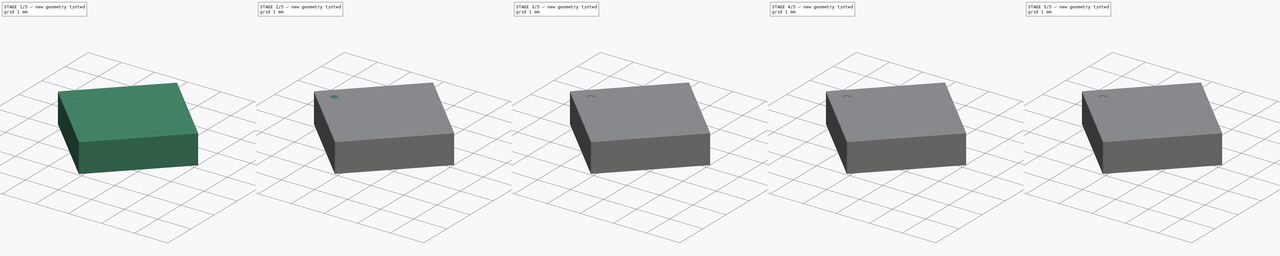
[diagram: build sequence overview — one tinted view per stage of 5, left to right]
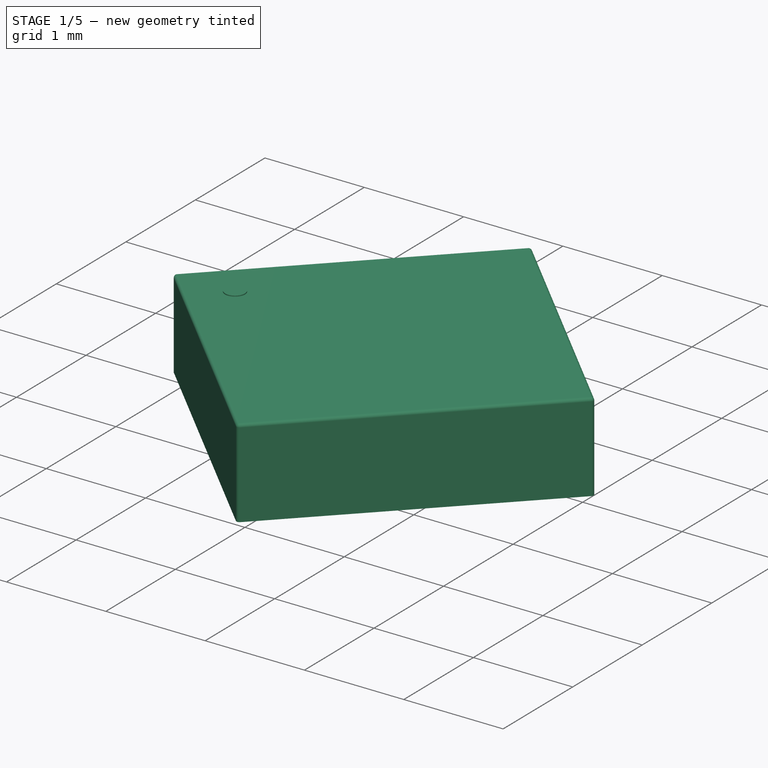
[diagram: stage 1 of 5 — iso view after this stage's code; geometry added in this stage tinted green]
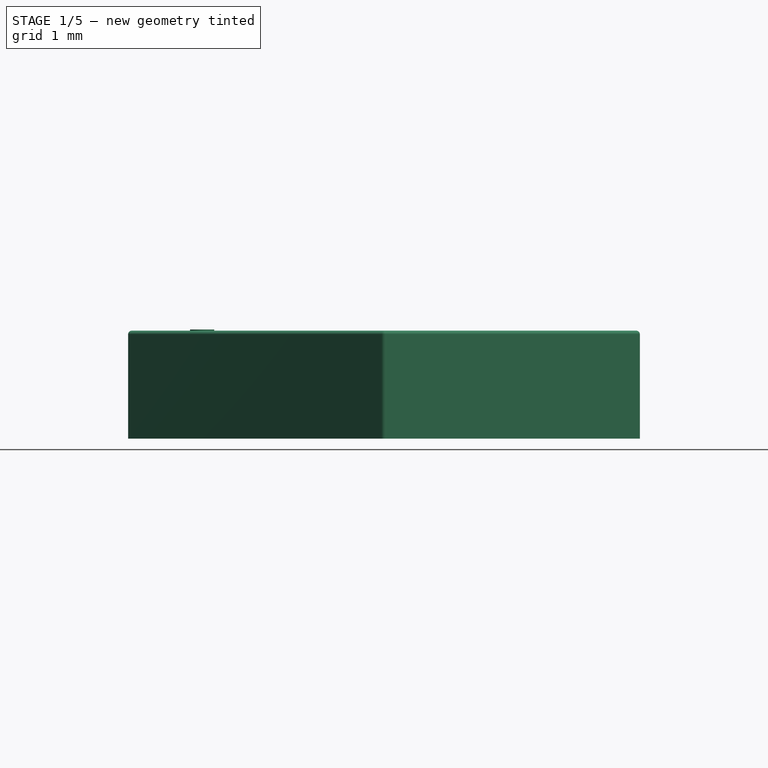
[diagram: stage 1 of 5 — front view after this stage's code; geometry added in this stage tinted green]
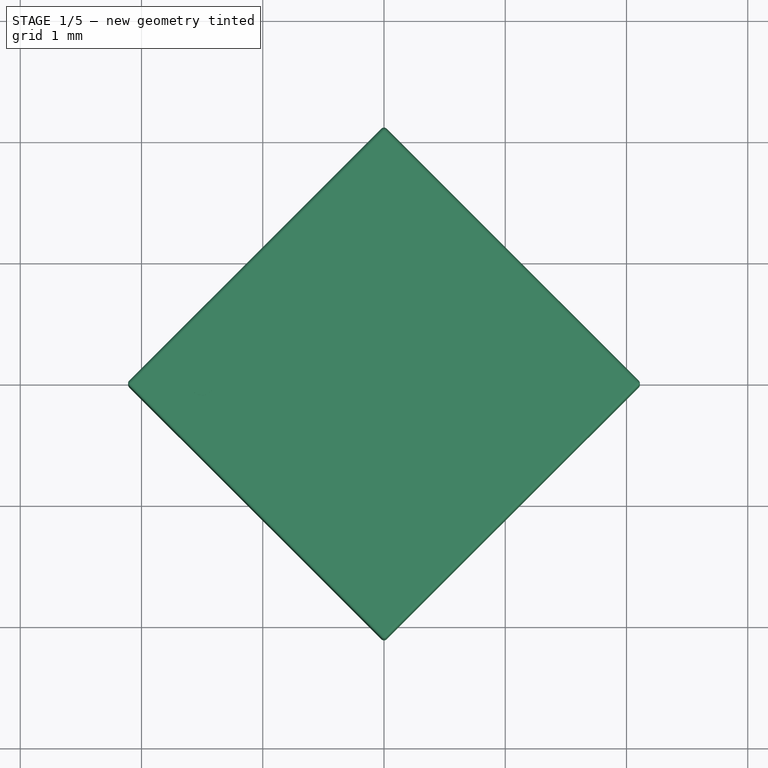
[diagram: stage 1 of 5 — top view after this stage's code; geometry added in this stage tinted green]
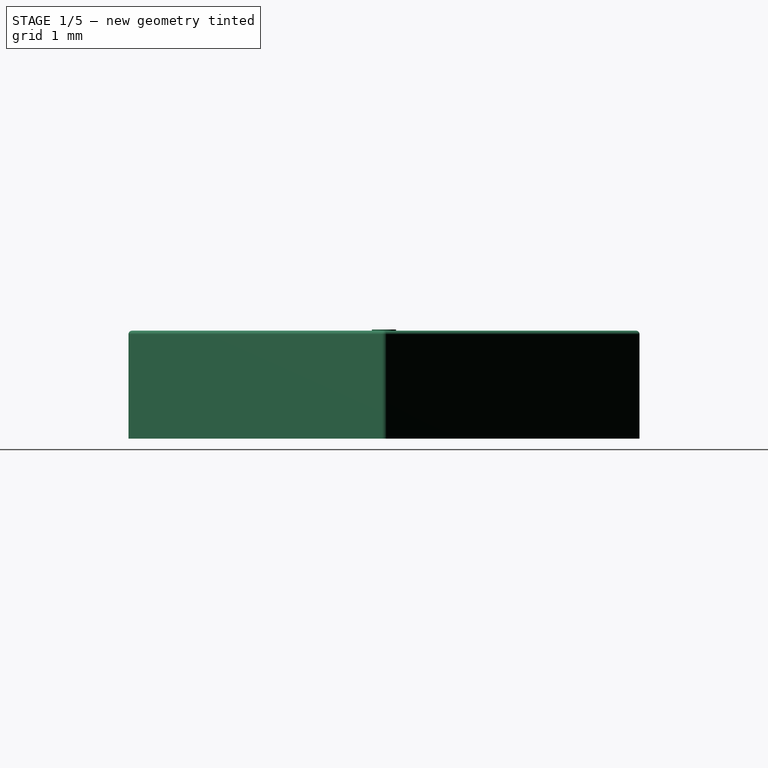
[diagram: stage 1 of 5 — right view after this stage's code; geometry added in this stage tinted green]
FCSTD DOCUMENT  (FreeCAD 0.17R11223 (Git))
Label: Mini-Circuits_FG873-4_3x3mm_04
License: All rights reserved
LicenseURL: http://en.wikipedia.org/wiki/All_rights_reserved
objects: Part::Box×8, Part::MultiFuse×4, Part::Cylinder×2, Sketcher::SketchObject×1, PartDesign::Pad×1, PartDesign::Body×1, Part::Fillet×1, Part::Cut×1
note: 20 computed .brp shape members not serialized (recipe doc carries the construction recipe); baked Part::Feature solids carry a one-line shape summary decoded from their .brp

FEATURE [Sketcher::SketchObject] Sketch
  MapMode = 5
  Support = -> [XY_Plane]
  sketch-geometry (4):
    g0: LineSegment StartX=-2.12264 StartY=0 StartZ=0 EndX=0 EndY=2.12 EndZ=0
    g1: LineSegment StartX=0 StartY=2.12 StartZ=0 EndX=2.12264 EndY=0 EndZ=0
    g2: LineSegment StartX=2.12264 StartY=0 StartZ=0 EndX=0 EndY=-2.12 EndZ=0
    g3: LineSegment StartX=0 StartY=-2.12 StartZ=0 EndX=-2.12264 EndY=0 EndZ=0
  constraints (12):
    c: PointOnObject(g0,g-1)
    c: PointOnObject(g0,g-2)
    c: Coincident(g1,g0)
    c: PointOnObject(g1,g-1)
    c: Coincident(g2,g1)
    c: Coincident(g3,g2)
    c: Coincident(g3,g0)
    c: Distance(g2) = 3
    c: Distance(g1) = 3
    c: Distance(g0) = 3
    c: Distance(g3) = 3
    c: DistanceY(g-1,g0) = 2.12
FEATURE [PartDesign::Pad] Pad
  Length = 0.89
  Length2 = 100
  Profile = -> Sketch
  Type = 0
FEATURE [Part::Fillet] Fillet
  Base = -> Pad
  Edges = 8 edges r=0.03: [Edge1,Edge2,Edge4,Edge5,Edge7,Edge8,Edge10,Edge12]
FEATURE [Part::Cylinder] Cylinder
  Angle = 360
  AttacherType = Attacher::AttachEngine3D
  Height = 0.2
  Placement = pos=(-1.5,0,0.7) rot=(0,0,1;0rad)
  Radius = 0.1
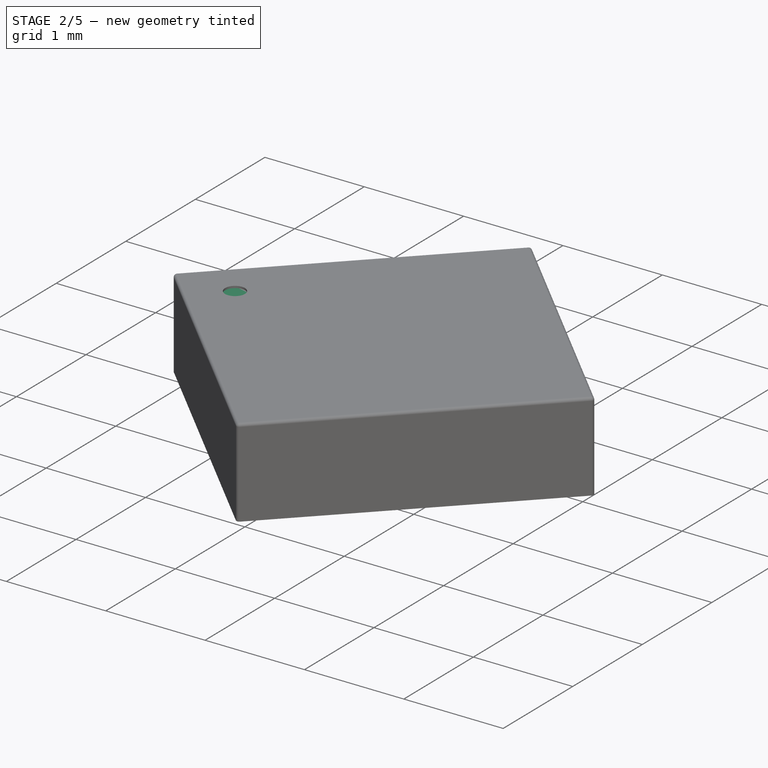
[diagram: stage 2 of 5 — iso view after this stage's code; geometry added in this stage tinted green]
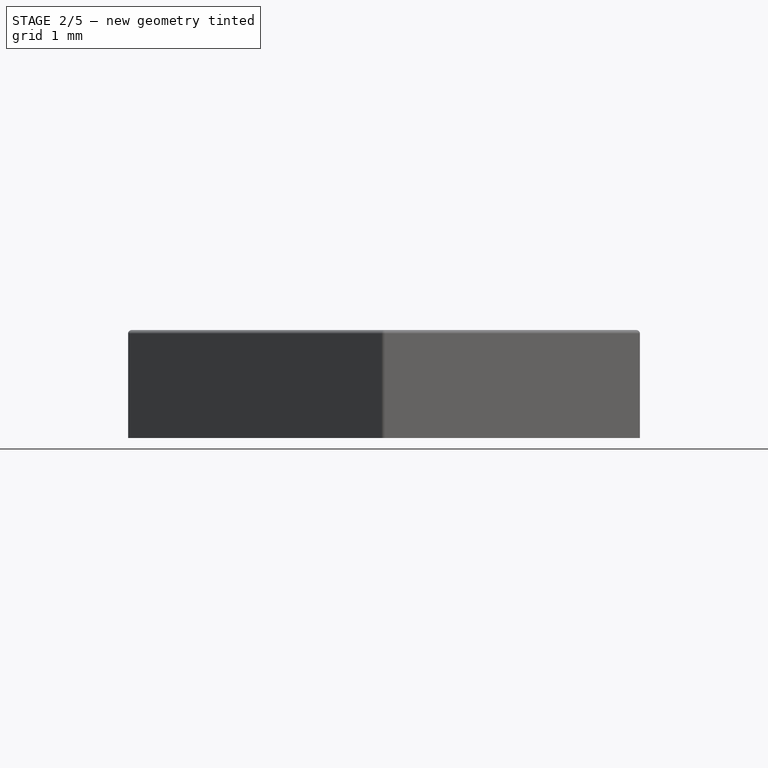
[diagram: stage 2 of 5 — front view after this stage's code; geometry added in this stage tinted green]
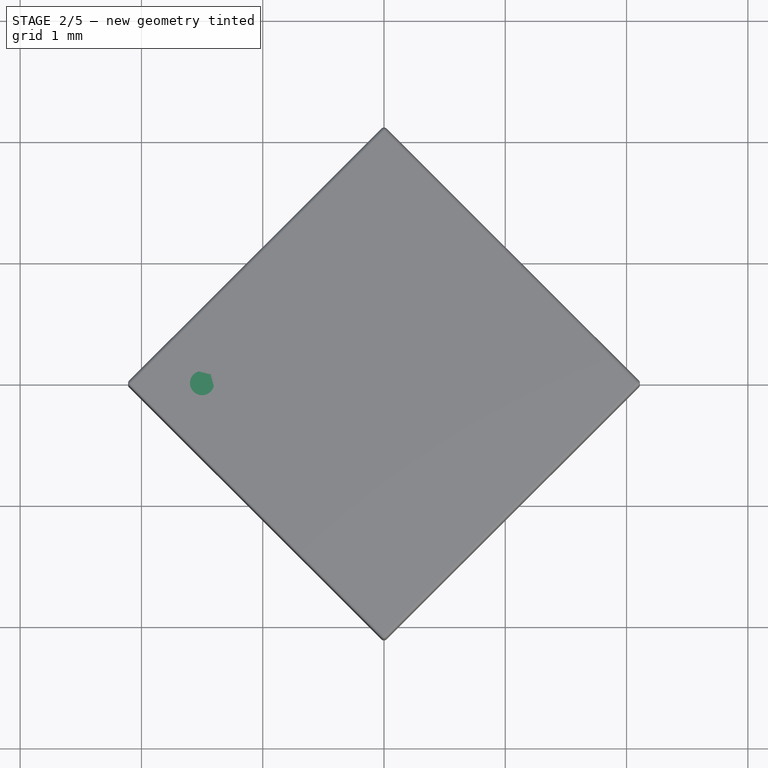
[diagram: stage 2 of 5 — top view after this stage's code; geometry added in this stage tinted green]
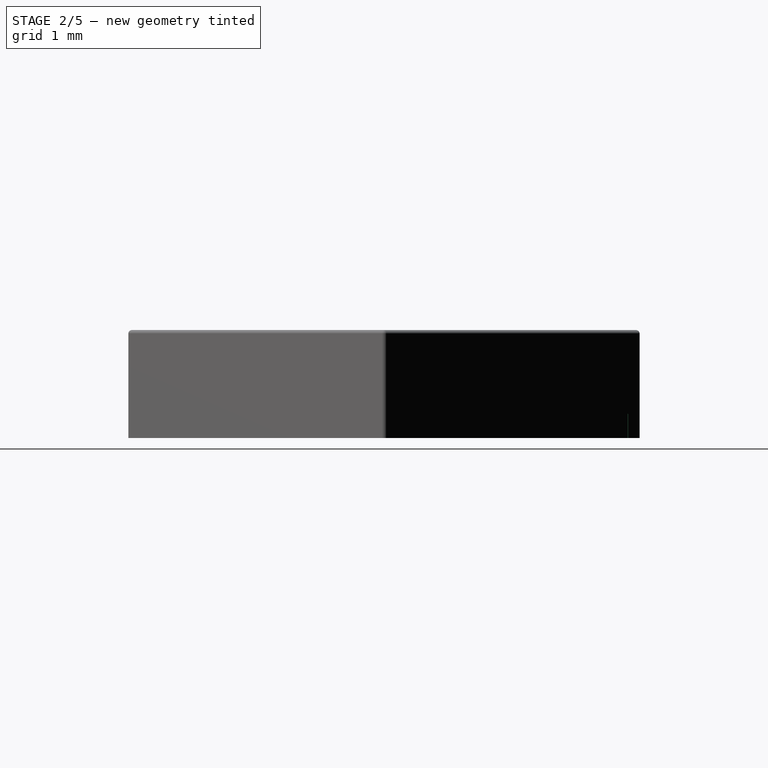
[diagram: stage 2 of 5 — right view after this stage's code; geometry added in this stage tinted green]
FEATURE [Part::Box] Box006  label="Kub006"
  AttacherType = Attacher::AttachEngine3D
  Height = 0.2
  Length = 0.05
  Placement = pos=(0,1.9,0) rot=(0,0,1;0.785398rad)
  Width = 0.16
FEATURE [Part::Box] Box007  label="Kub007"
  AttacherType = Attacher::AttachEngine3D
  Height = 0.2
  Length = 0.05
  Placement = pos=(0,1.97,0) rot=(0,0,-1;0.785398rad)
  Width = 0.11
FEATURE [Part::Cylinder] Cylinder001
  Angle = 360
  AttacherType = Attacher::AttachEngine3D
  Height = 0.2
  Placement = pos=(-1.5,0,0.67) rot=(0,0,1;0rad)
  Radius = 0.1
FEATURE [Part::Cut] Cut
  Base = -> Fillet
  Tool = -> Cylinder
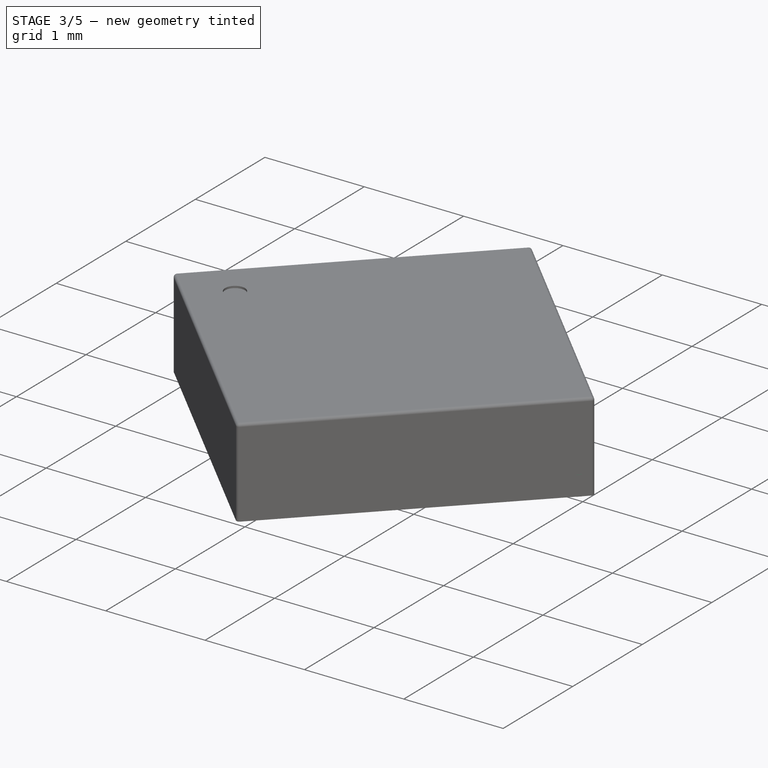
[diagram: stage 3 of 5 — iso view after this stage's code; geometry added in this stage tinted green]
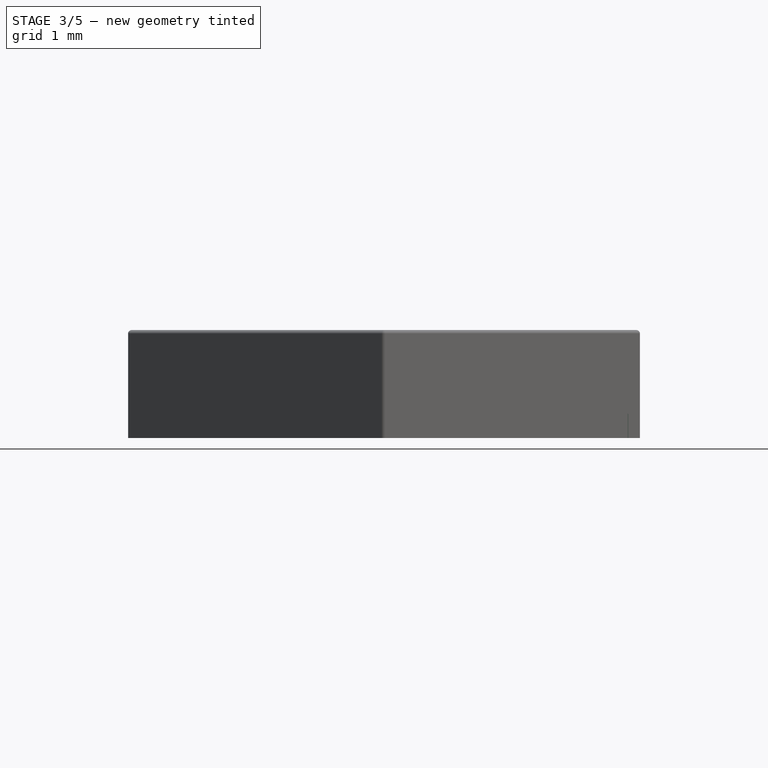
[diagram: stage 3 of 5 — front view after this stage's code; geometry added in this stage tinted green]
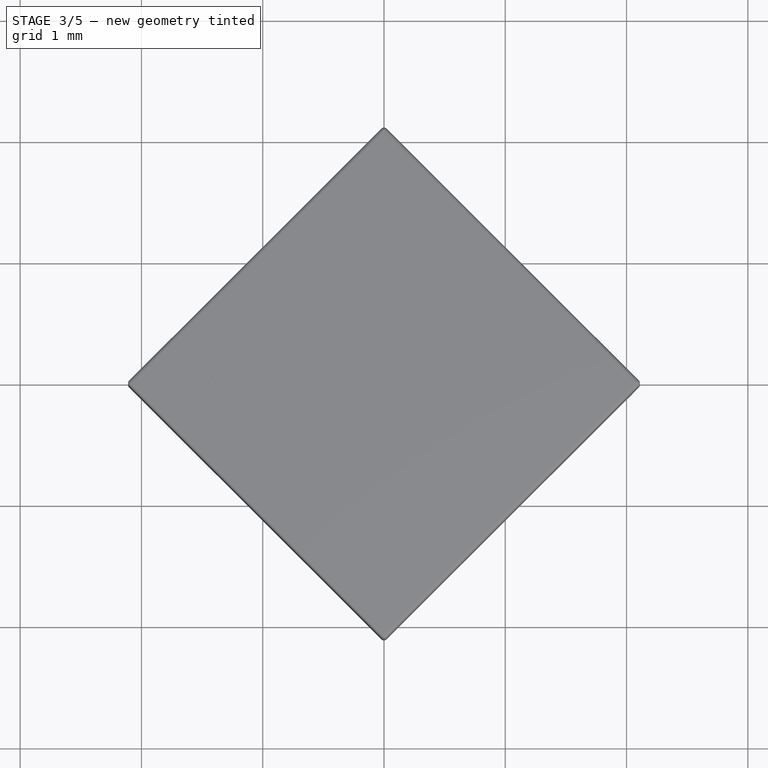
[diagram: stage 3 of 5 — top view after this stage's code; geometry added in this stage tinted green]
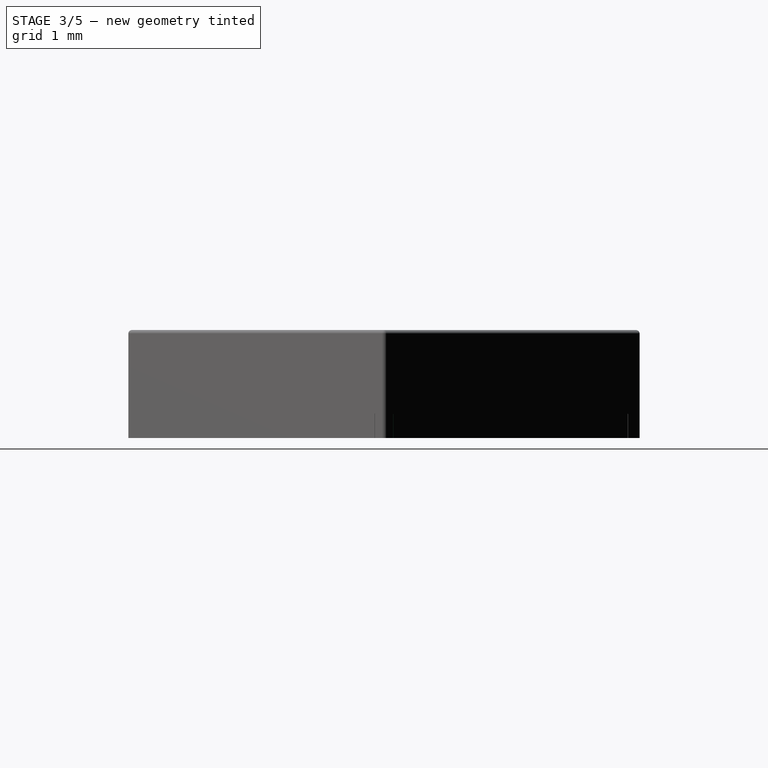
[diagram: stage 3 of 5 — right view after this stage's code; geometry added in this stage tinted green]
FEATURE [Part::Box] Box004  label="Kub004"
  AttacherType = Attacher::AttachEngine3D
  Height = 0.2
  Length = 0.05
  Placement = pos=(0,1.9,0) rot=(0,0,1;0.785398rad)
  Width = 0.16
FEATURE [Part::Box] Box005  label="Kub005"
  AttacherType = Attacher::AttachEngine3D
  Height = 0.2
  Length = 0.05
  Placement = pos=(0,1.97,0) rot=(0,0,-1;0.785398rad)
  Width = 0.11
FEATURE [Part::MultiFuse] Fusion003
  Placement = pos=(0,0,0) rot=(0,0,1;4.71239rad)
  Shapes = -> [Box006,Box007]
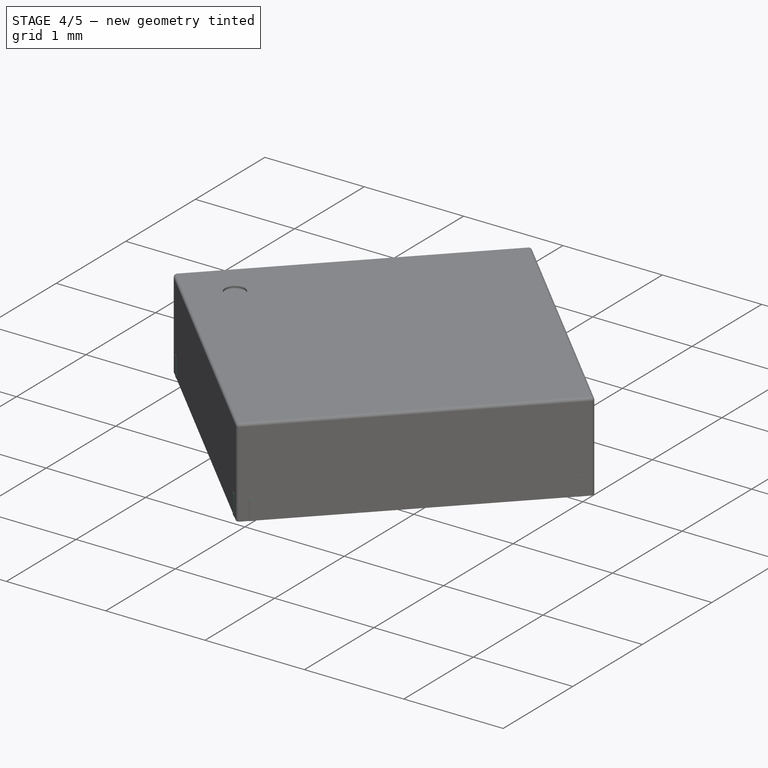
[diagram: stage 4 of 5 — iso view after this stage's code; geometry added in this stage tinted green]
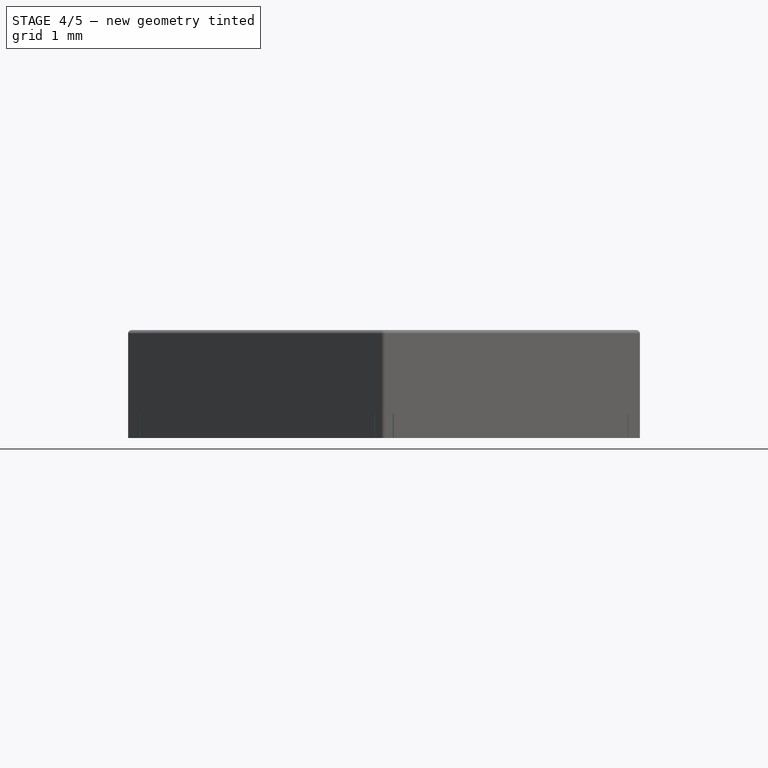
[diagram: stage 4 of 5 — front view after this stage's code; geometry added in this stage tinted green]
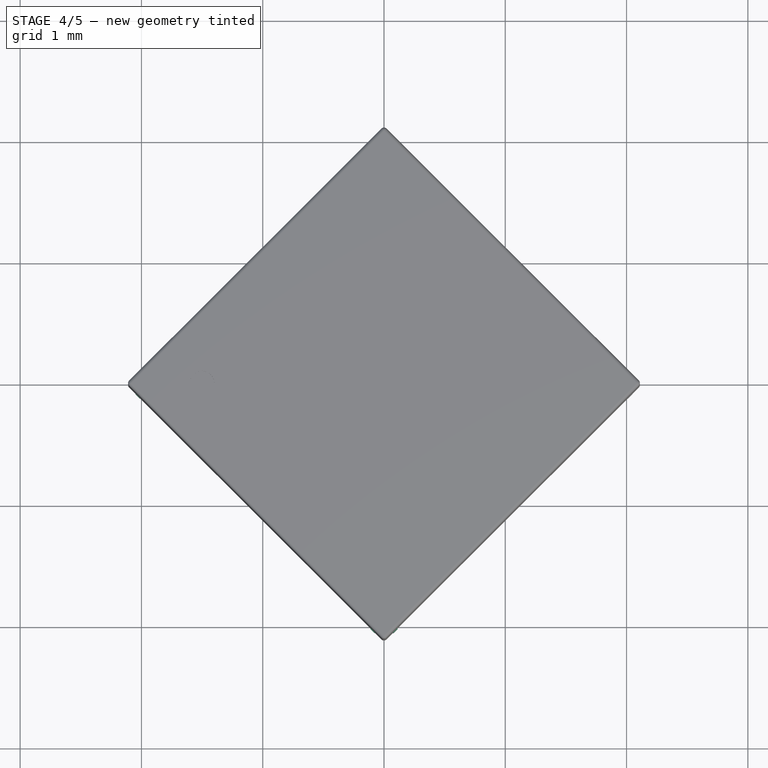
[diagram: stage 4 of 5 — top view after this stage's code; geometry added in this stage tinted green]
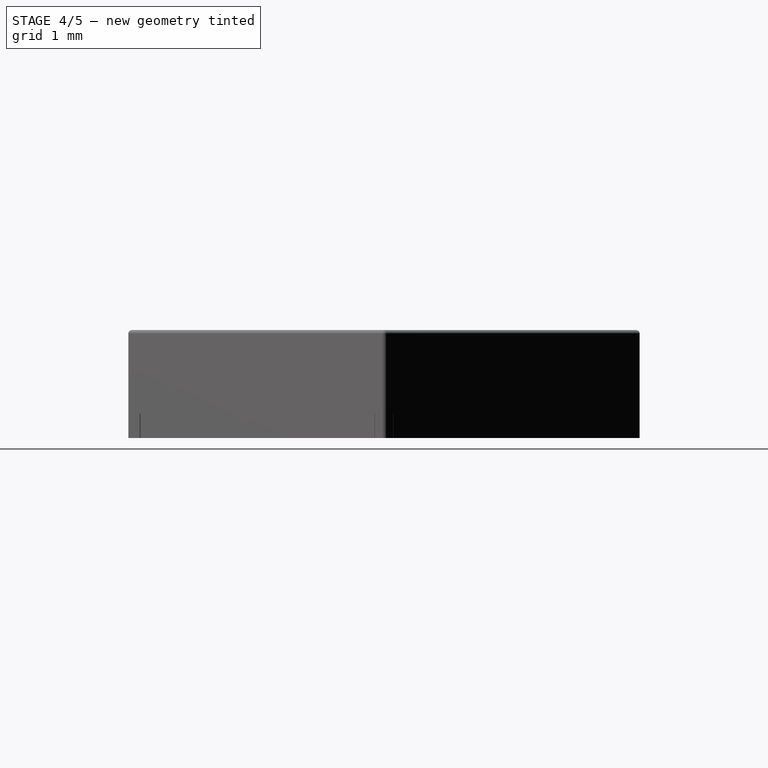
[diagram: stage 4 of 5 — right view after this stage's code; geometry added in this stage tinted green]
FEATURE [Part::Box] Box002  label="Kub002"
  AttacherType = Attacher::AttachEngine3D
  Height = 0.2
  Length = 0.05
  Placement = pos=(0,1.9,0) rot=(0,0,1;0.785398rad)
  Width = 0.16
FEATURE [Part::Box] Box003  label="Kub003"
  AttacherType = Attacher::AttachEngine3D
  Height = 0.2
  Length = 0.05
  Placement = pos=(0,1.97,0) rot=(0,0,-1;0.785398rad)
  Width = 0.11
FEATURE [Part::MultiFuse] Fusion001
  Placement = pos=(0,0,0) rot=(0,0,1;1.5708rad)
  Shapes = -> [Box002,Box003]
FEATURE [Part::MultiFuse] Fusion002
  Placement = pos=(0,0,0) rot=(0,0,1;3.14159rad)
  Shapes = -> [Box004,Box005]
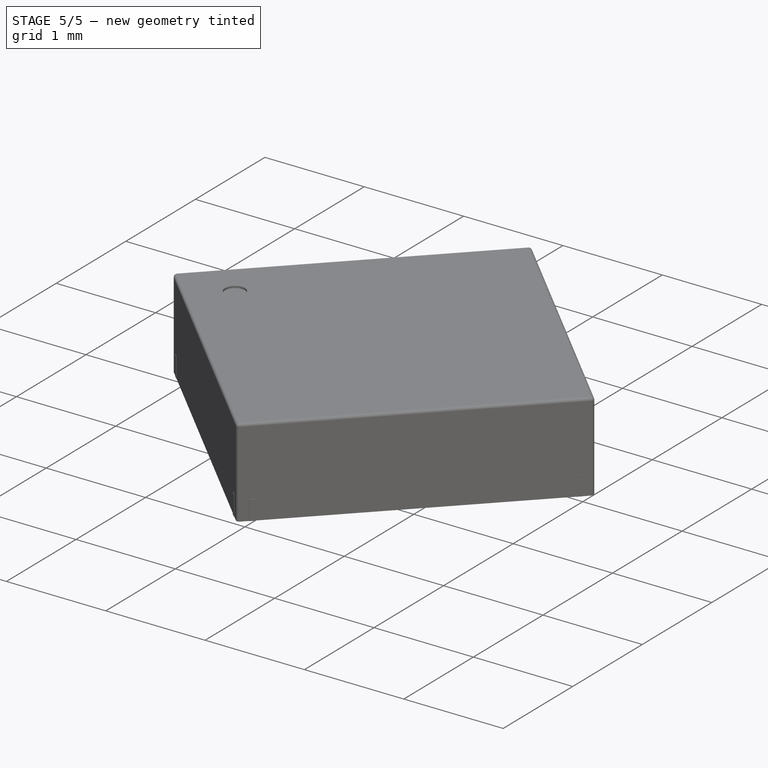
[diagram: stage 5 of 5 — iso view after this stage's code; geometry added in this stage tinted green]
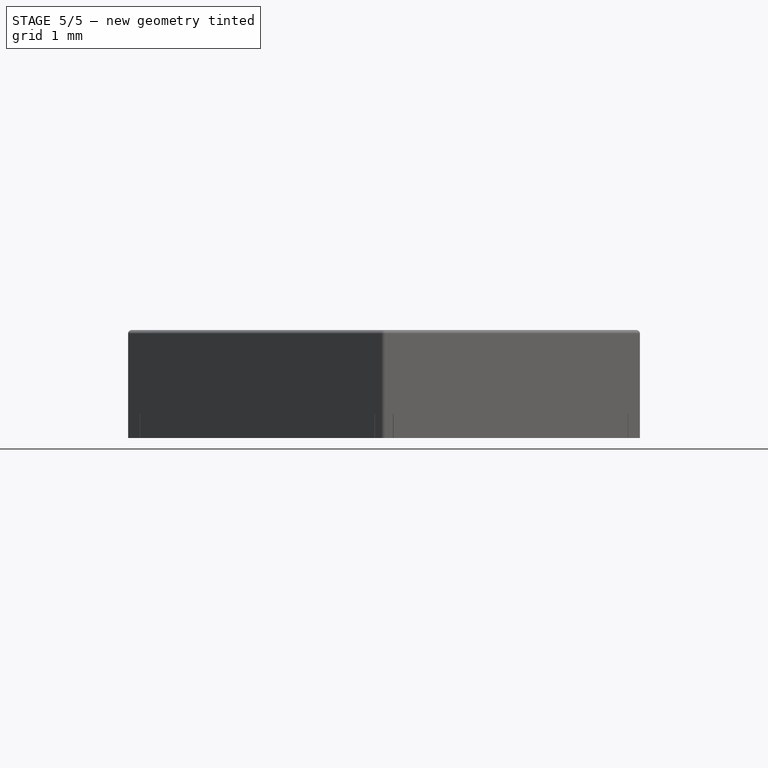
[diagram: stage 5 of 5 — front view after this stage's code; geometry added in this stage tinted green]
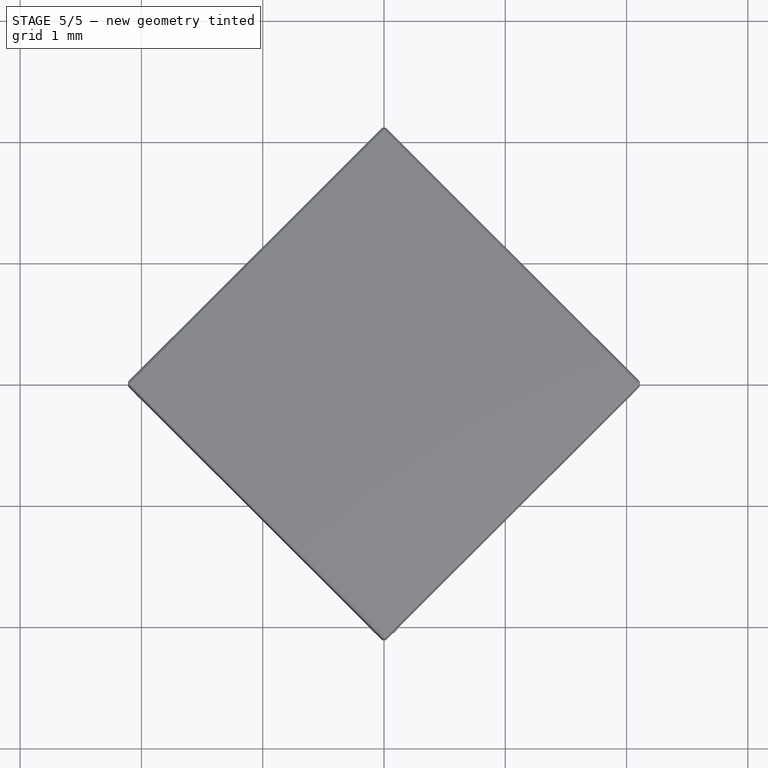
[diagram: stage 5 of 5 — top view after this stage's code; geometry added in this stage tinted green]
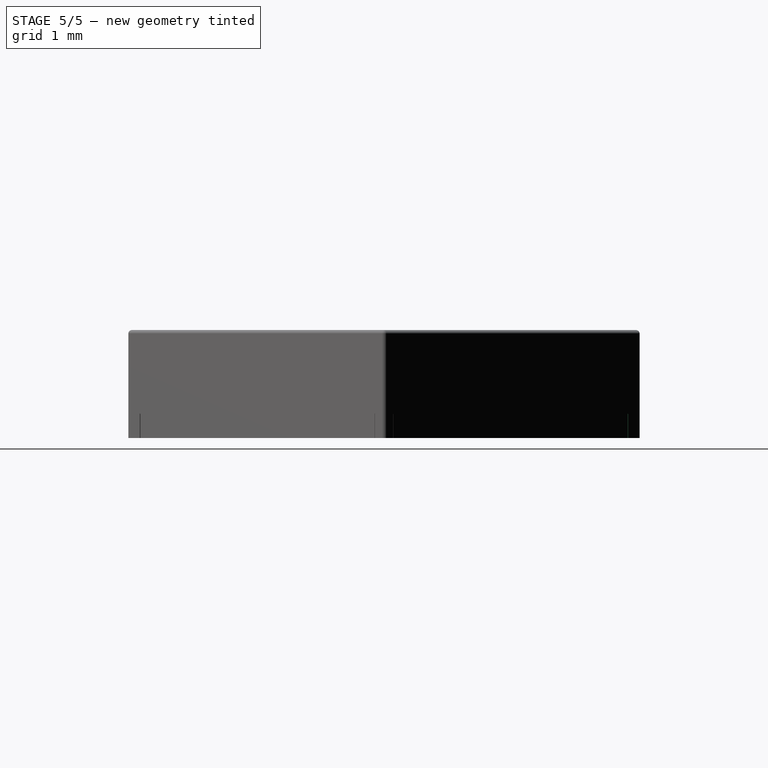
[diagram: stage 5 of 5 — right view after this stage's code; geometry added in this stage tinted green]
FEATURE [PartDesign::Body] Body
  Group = -> [Sketch,Pad]
  Origin = -> BodyOrigin
  Tip = -> Pad
FEATURE [Part::Box] Box  label="Kub"
  AttacherType = Attacher::AttachEngine3D
  Height = 0.2
  Length = 0.05
  Placement = pos=(0,1.9,0) rot=(0,0,1;0.785398rad)
  Width = 0.16
FEATURE [Part::Box] Box001  label="Kub001"
  AttacherType = Attacher::AttachEngine3D
  Height = 0.2
  Length = 0.05
  Placement = pos=(0,1.97,0) rot=(0,0,-1;0.785398rad)
  Width = 0.11
FEATURE [Part::MultiFuse] Fusion
  Shapes = -> [Box,Box001]
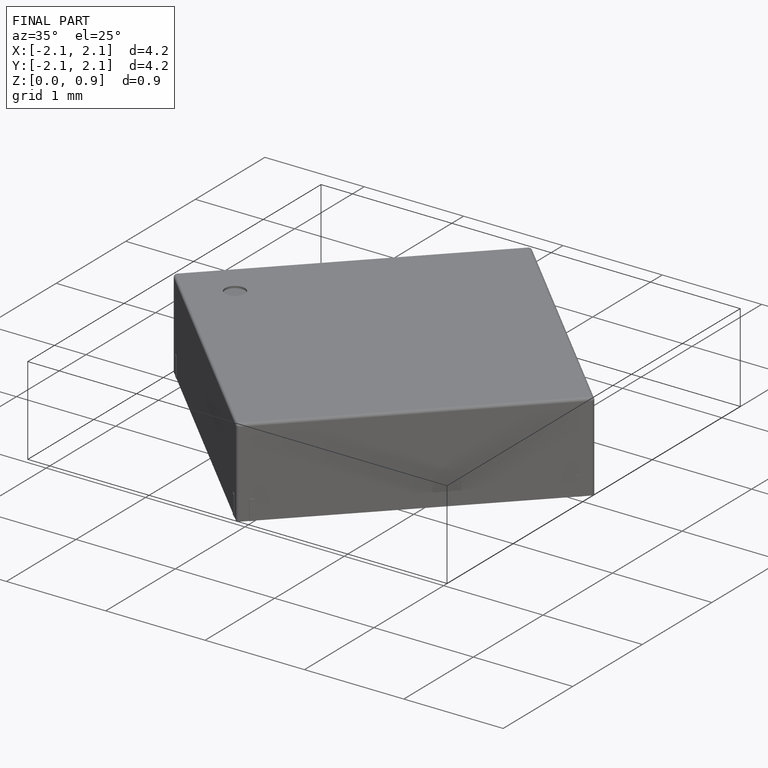
[diagram: finished part — iso view with bounding-box wireframe]
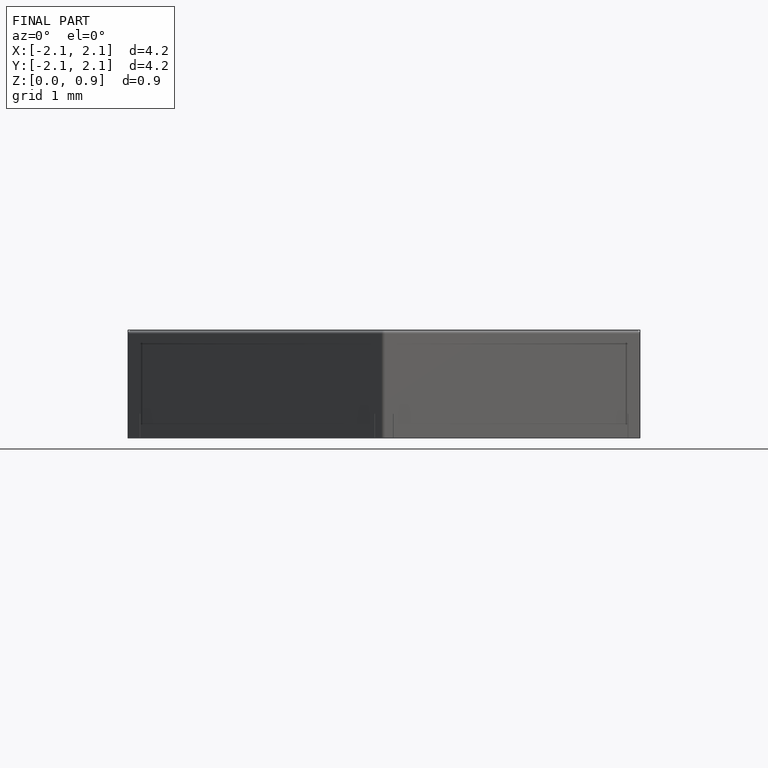
[diagram: finished part — front view with bounding-box wireframe]
